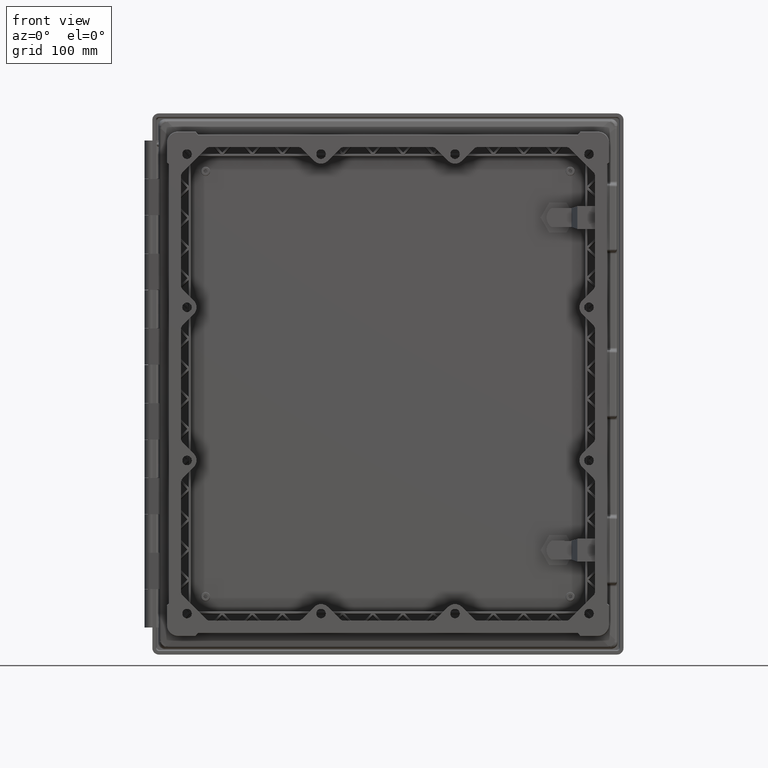
[diagram: clean part render]
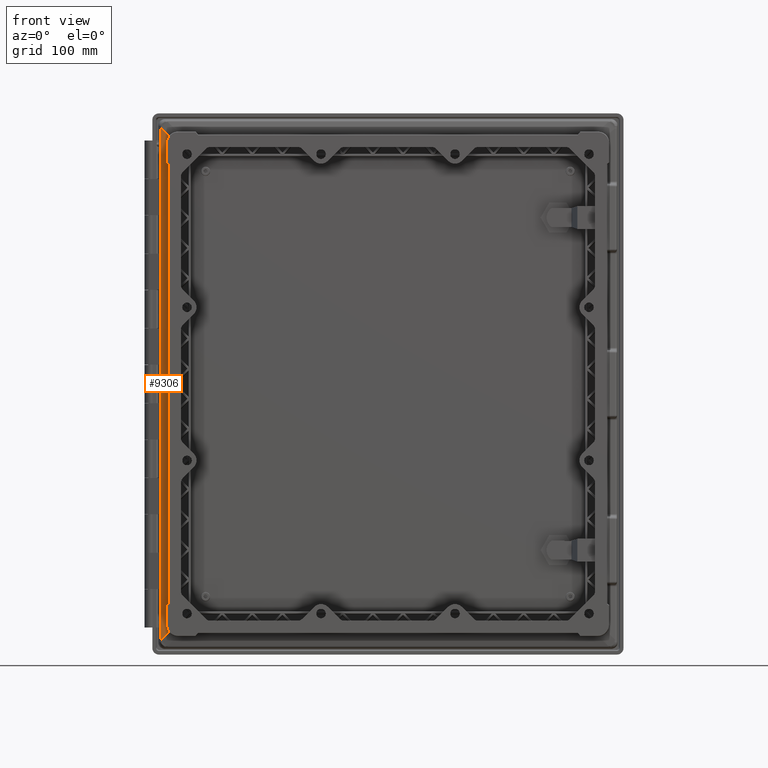
[diagram: same view with one face highlighted and labeled with its STEP entity id]
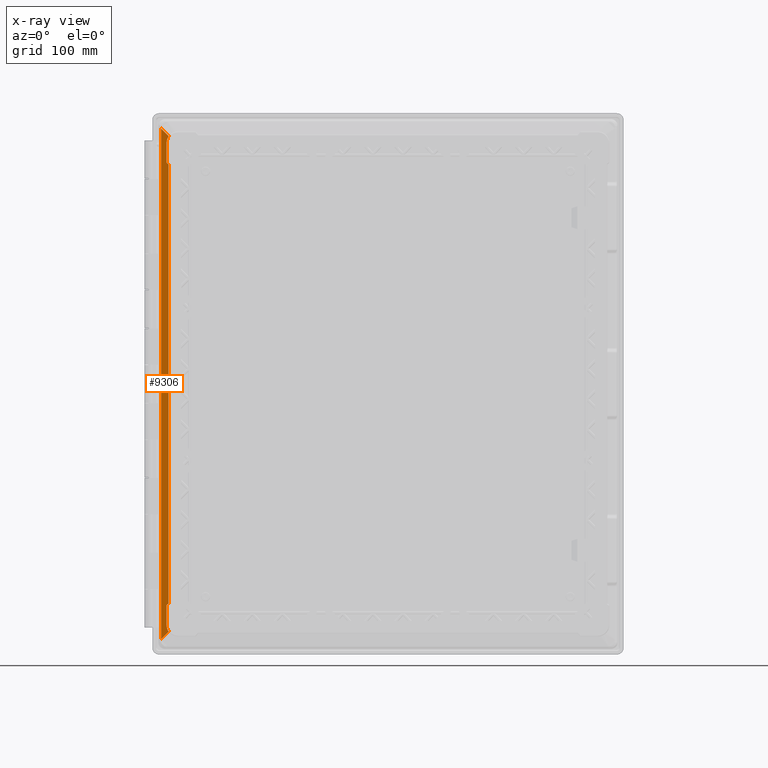
[diagram: x-ray of the same camera — body ghosted, the highlighted face saturated]
A machine part, front view. The second image highlights one B-rep face of the part: STEP entity #9306.
The next image is the same camera in x-ray: the body ghosted, the highlighted face saturated — about 0% of this face is hidden behind the body in this view.
In plain terms, the highlighted planar face has unit normal (-0.2079, -0.9781, 0).
Its self-contained STEP definition (entity closure, byte-faithful):
#2123=DIRECTION('',(0.E0,0.E0,-1.E0));
#2124=VECTOR('',#2123,3.672392701646E2);
#2125=CARTESIAN_POINT('',(-1.833627089513E2,-1.573199594574E1,
1.836196350823E2));
#2126=LINE('',#2125,#2124);
#2127=DIRECTION('',(7.619389798178E-1,-1.619551297524E-1,6.270721864196E-1));
#2128=VECTOR('',#2127,2.130056691202E0);
#2129=CARTESIAN_POINT('',(-1.849856821735E2,-1.538702233794E1,
-1.849553343888E2));
#2130=LINE('',#2129,#2128);
#2131=DIRECTION('',(-6.992527789240E-1,1.486307664263E-1,-6.992527772119E-1));
#2132=VECTOR('',#2131,9.167065687882E0);
#2133=CARTESIAN_POINT('',(-1.831904814333E2,-1.576860403478E1,
-2.071279528671E2));
#2134=LINE('',#2133,#2132);
#2135=DIRECTION('',(0.E0,0.E0,1.E0));
#2136=VECTOR('',#2135,4.270760980165E2);
#2137=CARTESIAN_POINT('',(-1.896005775902E2,-1.440609603571E1,
-2.135380490082E2));
#2138=LINE('',#2137,#2136);
#2139=DIRECTION('',(6.992527789240E-1,-1.486307664263E-1,-6.992527772119E-1));
#2140=VECTOR('',#2139,9.167065687880E0);
#2141=CARTESIAN_POINT('',(-1.896005775902E2,-1.440609603571E1,
2.135380490082E2));
#2142=LINE('',#2141,#2140);
#2143=DIRECTION('',(-7.619389798178E-1,1.619551297524E-1,6.270721864196E-1));
#2144=VECTOR('',#2143,2.130056691204E0);
#2145=CARTESIAN_POINT('',(-1.833627089513E2,-1.573199594574E1,
1.836196350823E2));
#2146=LINE('',#2145,#2144);
#2159=DIRECTION('',(0.E0,0.E0,1.E0));
#2160=VECTOR('',#2159,1.672073198229E1);
#2161=CARTESIAN_POINT('',(-1.849856821735E2,-1.538702233794E1,
-2.016760663711E2));
#2162=LINE('',#2161,#2160);
#2171=DIRECTION('',(0.E0,0.E0,1.E0));
#2172=VECTOR('',#2171,1.672073198229E1);
#2173=CARTESIAN_POINT('',(-1.849856821735E2,-1.538702233794E1,
1.849553343888E2));
#2174=LINE('',#2173,#2172);
#2213=CARTESIAN_POINT('',(-1.831904814333E2,-1.576860403478E1,
-2.071279528671E2));
#2214=CARTESIAN_POINT('',(-1.843827250334E2,-1.551518483447E1,
-2.055141674861E2));
#2215=CARTESIAN_POINT('',(-1.849856821735E2,-1.538702233794E1,
-2.036984336348E2));
#2216=CARTESIAN_POINT('',(-1.849856821735E2,-1.538702233794E1,
-2.016760663711E2));
#4033=CARTESIAN_POINT('',(-1.849856821735E2,-1.538702233794E1,
2.016760663711E2));
#4034=CARTESIAN_POINT('',(-1.849856821735E2,-1.538702233794E1,
2.036984336348E2));
#4035=CARTESIAN_POINT('',(-1.843827250335E2,-1.551518483447E1,
2.055141674861E2));
#4036=CARTESIAN_POINT('',(-1.831904814333E2,-1.576860403478E1,
2.071279528671E2));
#5550=CARTESIAN_POINT('',(-1.896005775745E2,-1.440609603905E1,
2.135380490082E2));
#5552=VERTEX_POINT('',#5550);
#5661=CARTESIAN_POINT('',(-1.896005775745E2,-1.440609603905E1,
-2.135380490082E2));
#5663=VERTEX_POINT('',#5661);
#6243=CARTESIAN_POINT('',(-1.833627089513E2,-1.573199594574E1,
1.836196350823E2));
#6244=VERTEX_POINT('',#6243);
#6245=CARTESIAN_POINT('',(-1.833627089513E2,-1.573199594574E1,
-1.836196350823E2));
#6246=VERTEX_POINT('',#6245);
#6275=CARTESIAN_POINT('',(-1.849856821735E2,-1.538702233794E1,
-1.849553343888E2));
#6276=VERTEX_POINT('',#6275);
#6277=CARTESIAN_POINT('',(-1.849856821735E2,-1.538702233794E1,
1.849553343888E2));
#6278=VERTEX_POINT('',#6277);
#6291=VERTEX_POINT('',#2213);
#6292=VERTEX_POINT('',#2216);
#6295=VERTEX_POINT('',#4033);
#6296=VERTEX_POINT('',#4036);
#9280=CARTESIAN_POINT('',(-1.915111092271E2,-1.4E1,2.209582404675E2));
#9281=DIRECTION('',(-2.079116908178E-1,-9.781476007338E-1,0.E0));
#9282=DIRECTION('',(9.781476007338E-1,-2.079116908178E-1,0.E0));
#9283=AXIS2_PLACEMENT_3D('',#9280,#9281,#9282);
#9284=PLANE('',#9283);
#9286=ORIENTED_EDGE('',*,*,#9285,.T.);
#9288=ORIENTED_EDGE('',*,*,#9287,.F.);
#9290=ORIENTED_EDGE('',*,*,#9289,.F.);
#9292=ORIENTED_EDGE('',*,*,#9291,.F.);
#9294=ORIENTED_EDGE('',*,*,#9293,.T.);
#9295=ORIENTED_EDGE('',*,*,#9224,.T.);
#9297=ORIENTED_EDGE('',*,*,#9296,.T.);
#9299=ORIENTED_EDGE('',*,*,#9298,.F.);
#9301=ORIENTED_EDGE('',*,*,#9300,.F.);
#9303=ORIENTED_EDGE('',*,*,#9302,.F.);
#9304=EDGE_LOOP('',(#9286,#9288,#9290,#9292,#9294,#9295,#9297,#9299,#9301,
#9303));
#9305=FACE_OUTER_BOUND('',#9304,.F.);
#9306=ADVANCED_FACE('',(#9305),#9284,.T.);
#2217=B_SPLINE_CURVE_WITH_KNOTS('',3,(#2213,#2214,#2215,#2216),.UNSPECIFIED.,
.F.,.F.,(4,4),(0.E0,1.E0),.UNSPECIFIED.);
#4037=B_SPLINE_CURVE_WITH_KNOTS('',3,(#4033,#4034,#4035,#4036),.UNSPECIFIED.,
.F.,.F.,(4,4),(0.E0,1.E0),.UNSPECIFIED.);
#9224=EDGE_CURVE('',#5663,#5552,#2138,.T.);
#9285=EDGE_CURVE('',#6244,#6246,#2126,.T.);
#9287=EDGE_CURVE('',#6276,#6246,#2130,.T.);
#9289=EDGE_CURVE('',#6292,#6276,#2162,.T.);
#9291=EDGE_CURVE('',#6291,#6292,#2217,.T.);
#9293=EDGE_CURVE('',#6291,#5663,#2134,.T.);
#9296=EDGE_CURVE('',#5552,#6296,#2142,.T.);
#9298=EDGE_CURVE('',#6295,#6296,#4037,.T.);
#9300=EDGE_CURVE('',#6278,#6295,#2174,.T.);
#9302=EDGE_CURVE('',#6244,#6278,#2146,.T.);